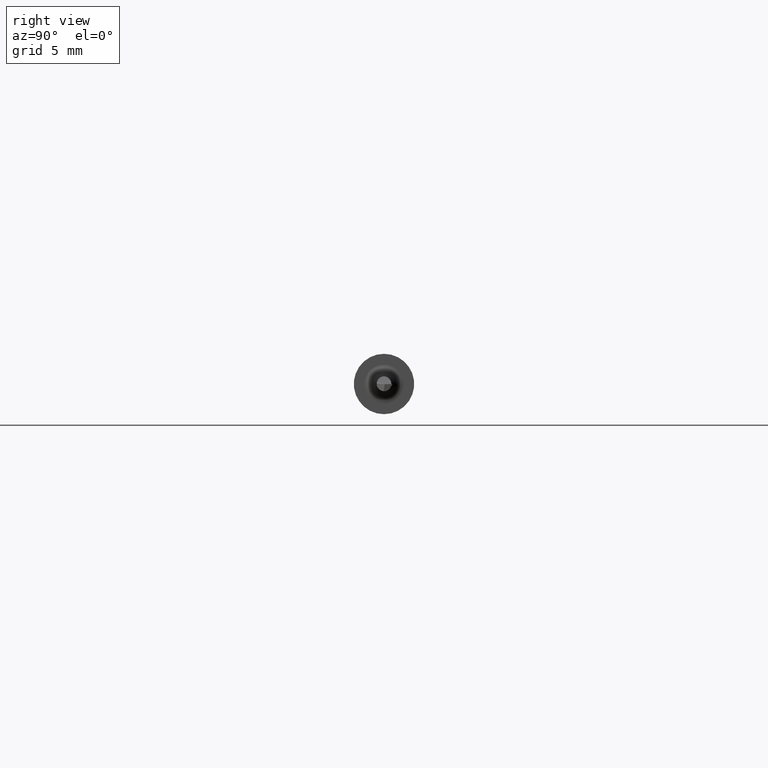
[diagram: clean part render]
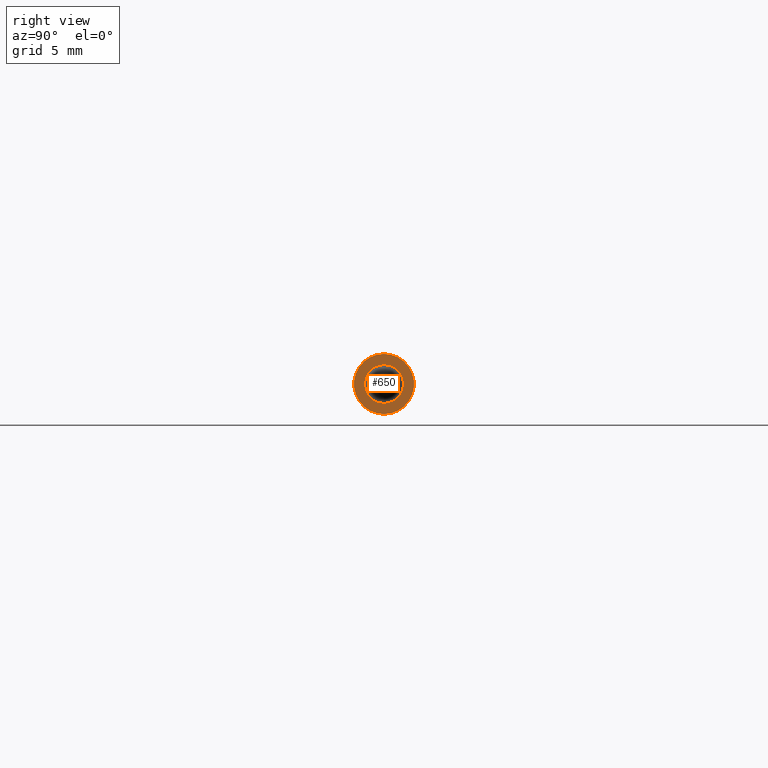
[diagram: same view with one face highlighted and labeled with its STEP entity id]
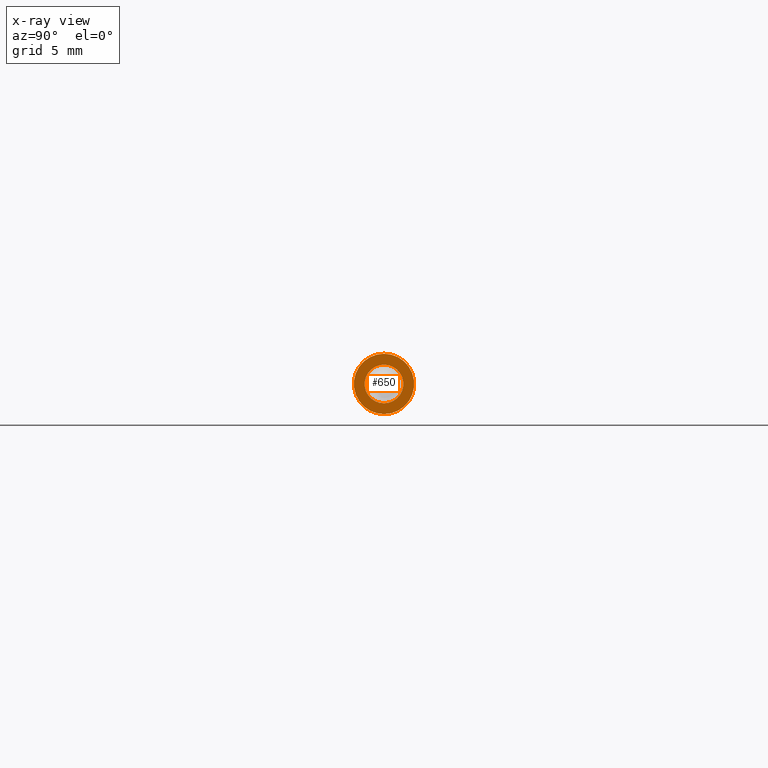
[diagram: x-ray of the same camera — body ghosted, the highlighted face saturated]
A machine part, right view. The second image highlights one B-rep face of the part: STEP entity #650.
The next image is the same camera in x-ray: the body ghosted, the highlighted face saturated — about 0% of this face is hidden behind the body in this view.
In plain terms, the highlighted planar face has unit normal (1, 0, 0).
Its self-contained STEP definition (entity closure, byte-faithful):
#8 = CIRCLE ( 'NONE', #730, 0.06234999999999997489 ) ;
#40 = CARTESIAN_POINT ( 'NONE',  ( 1.288000000000000256, 0.000000000000000000, 0.000000000000000000 ) ) ;
#61 = DIRECTION ( 'NONE',  ( 0.000000000000000000, 0.000000000000000000, -1.000000000000000000 ) ) ;
#96 = CARTESIAN_POINT ( 'NONE',  ( 1.288000000000000256, 0.000000000000000000, 0.000000000000000000 ) ) ;
#103 = ORIENTED_EDGE ( 'NONE', *, *, #408, .T. ) ;
#107 = PLANE ( 'NONE',  #617 ) ;
#125 = AXIS2_PLACEMENT_3D ( 'NONE', #216, #522, #706 ) ;
#129 = CARTESIAN_POINT ( 'NONE',  ( 1.288000000000000256, 4.898587196589413537E-18, -0.04000000000000000083 ) ) ;
#175 = CARTESIAN_POINT ( 'NONE',  ( 1.288000000000000256, 0.000000000000000000, 0.000000000000000000 ) ) ;
#176 = CIRCLE ( 'NONE', #696, 0.04000000000000000083 ) ;
#216 = CARTESIAN_POINT ( 'NONE',  ( 1.288000000000000256, 0.000000000000000000, 0.000000000000000000 ) ) ;
#218 = EDGE_CURVE ( 'NONE', #298, #695, #8, .T. ) ;
#223 = EDGE_CURVE ( 'NONE', #695, #298, #375, .T. ) ;
#227 = DIRECTION ( 'NONE',  ( 1.000000000000000000, 0.000000000000000000, 0.000000000000000000 ) ) ;
#273 = DIRECTION ( 'NONE',  ( 1.000000000000000000, 0.000000000000000000, 0.000000000000000000 ) ) ;
#288 = ORIENTED_EDGE ( 'NONE', *, *, #218, .T. ) ;
#298 = VERTEX_POINT ( 'NONE', #357 ) ;
#311 = DIRECTION ( 'NONE',  ( 0.000000000000000000, 0.000000000000000000, 1.000000000000000000 ) ) ;
#320 = VERTEX_POINT ( 'NONE', #412 ) ;
#335 = EDGE_LOOP ( 'NONE', ( #103, #611 ) ) ;
#336 = CARTESIAN_POINT ( 'NONE',  ( 1.288000000000000256, 0.1123499999999999499, 0.000000000000000000 ) ) ;
#357 = CARTESIAN_POINT ( 'NONE',  ( 1.288000000000000256, 7.635672792683743590E-18, -0.06234999999999997489 ) ) ;
#375 = CIRCLE ( 'NONE', #125, 0.06234999999999997489 ) ;
#390 = FACE_BOUND ( 'NONE', #335, .T. ) ;
#408 = EDGE_CURVE ( 'NONE', #320, #687, #495, .T. ) ;
#412 = CARTESIAN_POINT ( 'NONE',  ( 1.288000000000000256, 0.000000000000000000, 0.04000000000000000083 ) ) ;
#424 = DIRECTION ( 'NONE',  ( -1.000000000000000000, -0.000000000000000000, -0.000000000000000000 ) ) ;
#428 = DIRECTION ( 'NONE',  ( 0.000000000000000000, 0.000000000000000000, 1.000000000000000000 ) ) ;
#459 = DIRECTION ( 'NONE',  ( 0.000000000000000000, 0.000000000000000000, -1.000000000000000000 ) ) ;
#461 = EDGE_LOOP ( 'NONE', ( #698, #288 ) ) ;
#471 = AXIS2_PLACEMENT_3D ( 'NONE', #96, #540, #311 ) ;
#474 = EDGE_CURVE ( 'NONE', #687, #320, #176, .T. ) ;
#495 = CIRCLE ( 'NONE', #471, 0.04000000000000000083 ) ;
#522 = DIRECTION ( 'NONE',  ( 1.000000000000000000, 0.000000000000000000, 0.000000000000000000 ) ) ;
#540 = DIRECTION ( 'NONE',  ( -1.000000000000000000, -0.000000000000000000, -0.000000000000000000 ) ) ;
#611 = ORIENTED_EDGE ( 'NONE', *, *, #474, .T. ) ;
#617 = AXIS2_PLACEMENT_3D ( 'NONE', #336, #227, #459 ) ;
#627 = FACE_OUTER_BOUND ( 'NONE', #461, .T. ) ;
#650 = ADVANCED_FACE ( 'NONE', ( #390, #627 ), #107, .T. ) ;
#687 = VERTEX_POINT ( 'NONE', #129 ) ;
#695 = VERTEX_POINT ( 'NONE', #715 ) ;
#696 = AXIS2_PLACEMENT_3D ( 'NONE', #40, #424, #428 ) ;
#698 = ORIENTED_EDGE ( 'NONE', *, *, #223, .T. ) ;
#706 = DIRECTION ( 'NONE',  ( 0.000000000000000000, 0.000000000000000000, -1.000000000000000000 ) ) ;
#715 = CARTESIAN_POINT ( 'NONE',  ( 1.288000000000000256, 0.000000000000000000, 0.06234999999999997489 ) ) ;
#730 = AXIS2_PLACEMENT_3D ( 'NONE', #175, #273, #61 ) ;